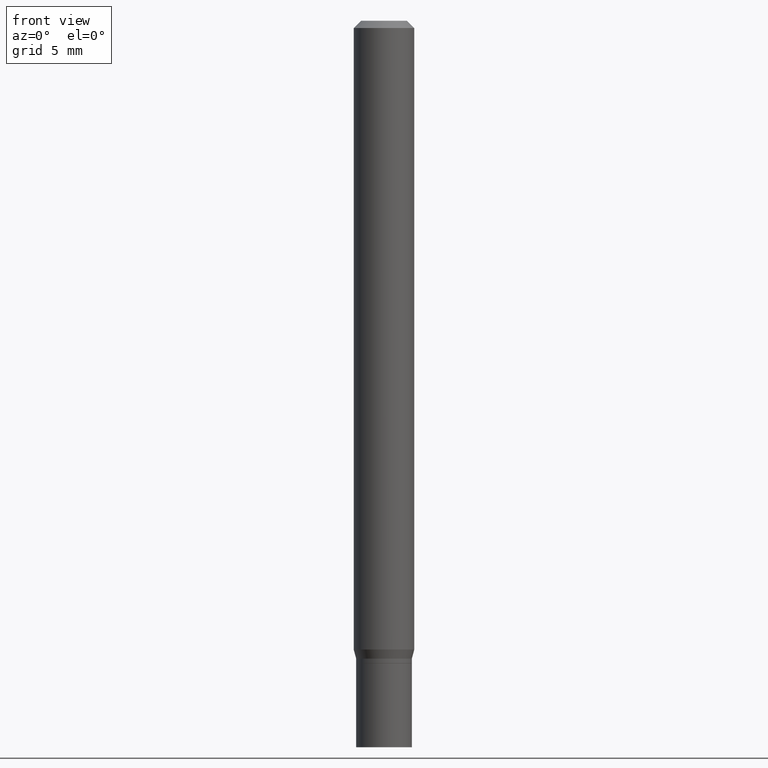
[diagram: clean part render]
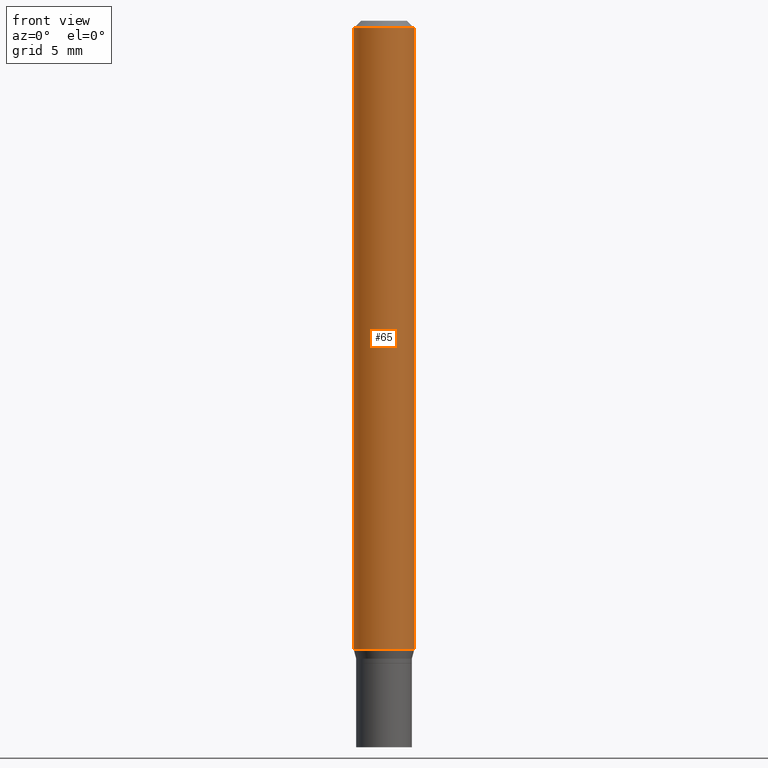
[diagram: same view with one face highlighted and labeled with its STEP entity id]
A machine part, front view. The second image highlights one B-rep face of the part: STEP entity #65.
In plain terms, the highlighted cylindrical surface (edge-blend (fillet) strip) has radius 1.5875 mm, axis along (-0, 0, 1).
Its self-contained STEP definition (entity closure, byte-faithful):
#1 = CARTESIAN_POINT ( 'NONE',  ( 0.06250000000000000000, -4.969564161860607604E-15, -1.298339745962155511 ) ) ;
#5 = ORIENTED_EDGE ( 'NONE', *, *, #57, .T. ) ;
#18 = DIRECTION ( 'NONE',  ( -2.445468806185136877E-29, 3.491481338843145188E-15, 1.000000000000000000 ) ) ;
#20 = ORIENTED_EDGE ( 'NONE', *, *, #142, .F. ) ;
#29 = DIRECTION ( 'NONE',  ( -2.445468806185136597E-29, 3.491481338843145583E-15, 1.000000000000000000 ) ) ;
#35 = VERTEX_POINT ( 'NONE', #307 ) ;
#57 = EDGE_CURVE ( 'NONE', #101, #35, #281, .T. ) ;
#65 = ADVANCED_FACE ( 'NONE', ( #415 ), #88, .T. ) ;
#70 = VERTEX_POINT ( 'NONE', #273 ) ;
#75 = CARTESIAN_POINT ( 'NONE',  ( -0.06250000000000000000, -1.848661397443869088E-15, -0.01499999999999999944 ) ) ;
#79 = DIRECTION ( 'NONE',  ( -2.445468806185136877E-29, 3.491481338843145188E-15, 1.000000000000000000 ) ) ;
#88 = CYLINDRICAL_SURFACE ( 'NONE', #443, 0.06250000000000000000 ) ;
#94 = AXIS2_PLACEMENT_3D ( 'NONE', #287, #436, #310 ) ;
#100 = CARTESIAN_POINT ( 'NONE',  ( 0.06250000000000000000, -4.364351673553916694E-16, 3.047610484872459871E-30 ) ) ;
#101 = VERTEX_POINT ( 'NONE', #1 ) ;
#118 = DIRECTION ( 'NONE',  ( -2.445468806185136597E-29, 3.491481338843145583E-15, 1.000000000000000000 ) ) ;
#142 = EDGE_CURVE ( 'NONE', #70, #451, #260, .T. ) ;
#158 = DIRECTION ( 'NONE',  ( 1.000000000000000000, -6.982962677686262766E-15, 0.000000000000000000 ) ) ;
#164 = ORIENTED_EDGE ( 'NONE', *, *, #317, .F. ) ;
#212 = VECTOR ( 'NONE', #79, 39.37007874015748143 ) ;
#245 = EDGE_CURVE ( 'NONE', #70, #101, #333, .T. ) ;
#260 = LINE ( 'NONE', #296, #212 ) ;
#273 = CARTESIAN_POINT ( 'NONE',  ( -0.06250000000000000000, -4.089039784655153318E-15, -1.298339745962155511 ) ) ;
#281 = LINE ( 'NONE', #100, #380 ) ;
#287 = CARTESIAN_POINT ( 'NONE',  ( 3.668203209277705088E-31, -5.237222008264718399E-17, -0.01499999999999999944 ) ) ;
#296 = CARTESIAN_POINT ( 'NONE',  ( -0.06250000000000000000, 4.440892098500626162E-16, -3.074334431409316114E-30 ) ) ;
#304 = CARTESIAN_POINT ( 'NONE',  ( 0.000000000000000000, 0.000000000000000000, 0.000000000000000000 ) ) ;
#307 = CARTESIAN_POINT ( 'NONE',  ( 0.06250000000000000000, -4.888073874380388472E-16, -0.01499999999999999944 ) ) ;
#310 = DIRECTION ( 'NONE',  ( 1.000000000000000000, -6.982962677686266711E-15, 0.000000000000000000 ) ) ;
#317 = EDGE_CURVE ( 'NONE', #451, #35, #455, .T. ) ;
#319 = ORIENTED_EDGE ( 'NONE', *, *, #245, .T. ) ;
#333 = CIRCLE ( 'NONE', #435, 0.06250000000000000000 ) ;
#342 = CARTESIAN_POINT ( 'NONE',  ( 3.175049348580785611E-29, -4.533128994505215935E-15, -1.298339745962155511 ) ) ;
#380 = VECTOR ( 'NONE', #18, 39.37007874015748143 ) ;
#393 = EDGE_LOOP ( 'NONE', ( #20, #319, #5, #164 ) ) ;
#413 = DIRECTION ( 'NONE',  ( 1.000000000000000000, -6.982962677686266711E-15, 4.876176775795935793E-29 ) ) ;
#415 = FACE_OUTER_BOUND ( 'NONE', #393, .T. ) ;
#435 = AXIS2_PLACEMENT_3D ( 'NONE', #342, #29, #158 ) ;
#436 = DIRECTION ( 'NONE',  ( -2.445468806185136597E-29, 3.491481338843145583E-15, 1.000000000000000000 ) ) ;
#443 = AXIS2_PLACEMENT_3D ( 'NONE', #304, #118, #413 ) ;
#451 = VERTEX_POINT ( 'NONE', #75 ) ;
#455 = CIRCLE ( 'NONE', #94, 0.06250000000000000000 ) ;